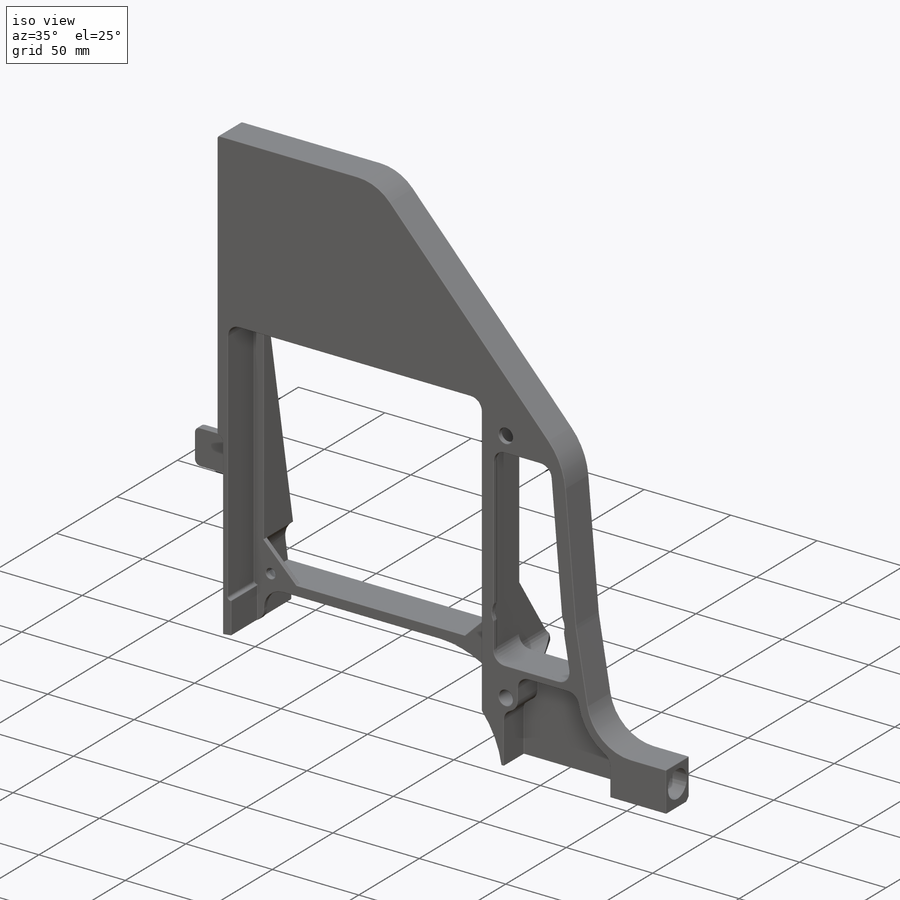
[diagram: iso view]
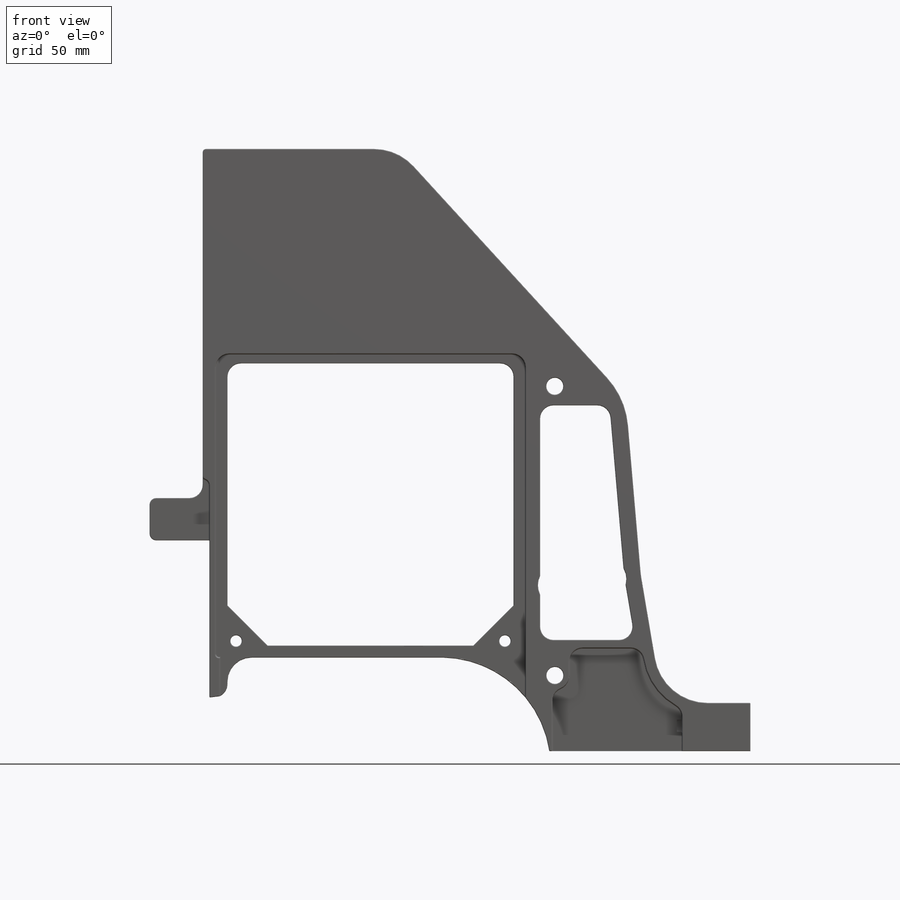
[diagram: front view]
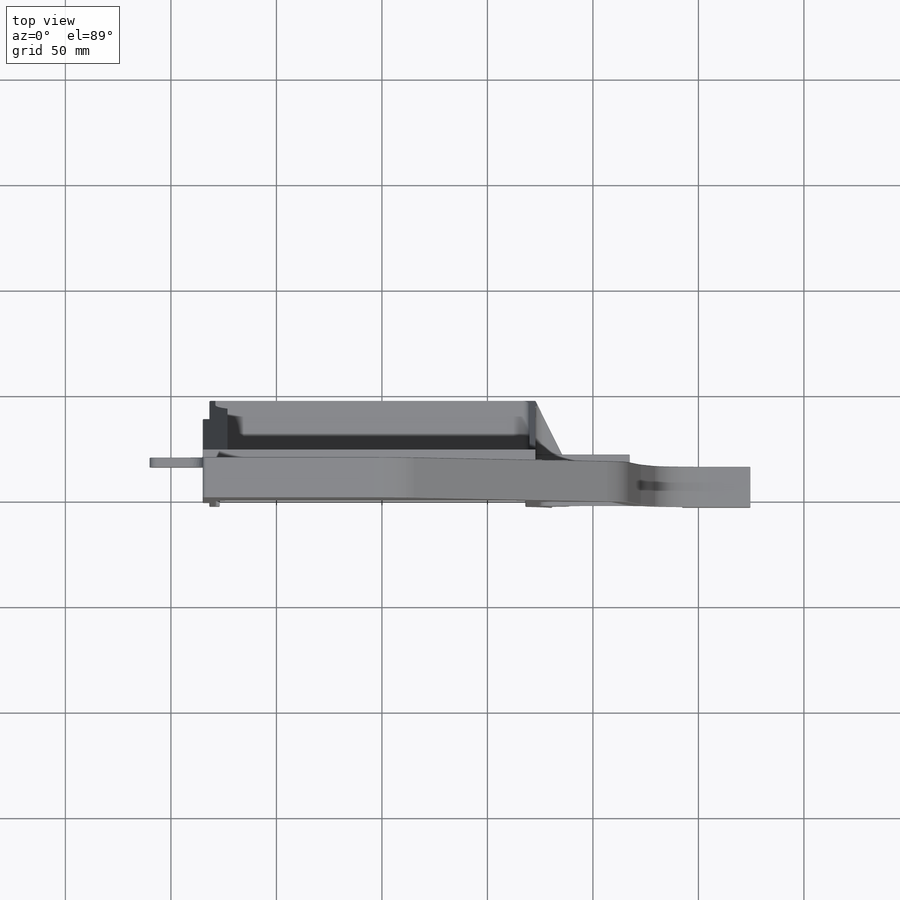
[diagram: top view]
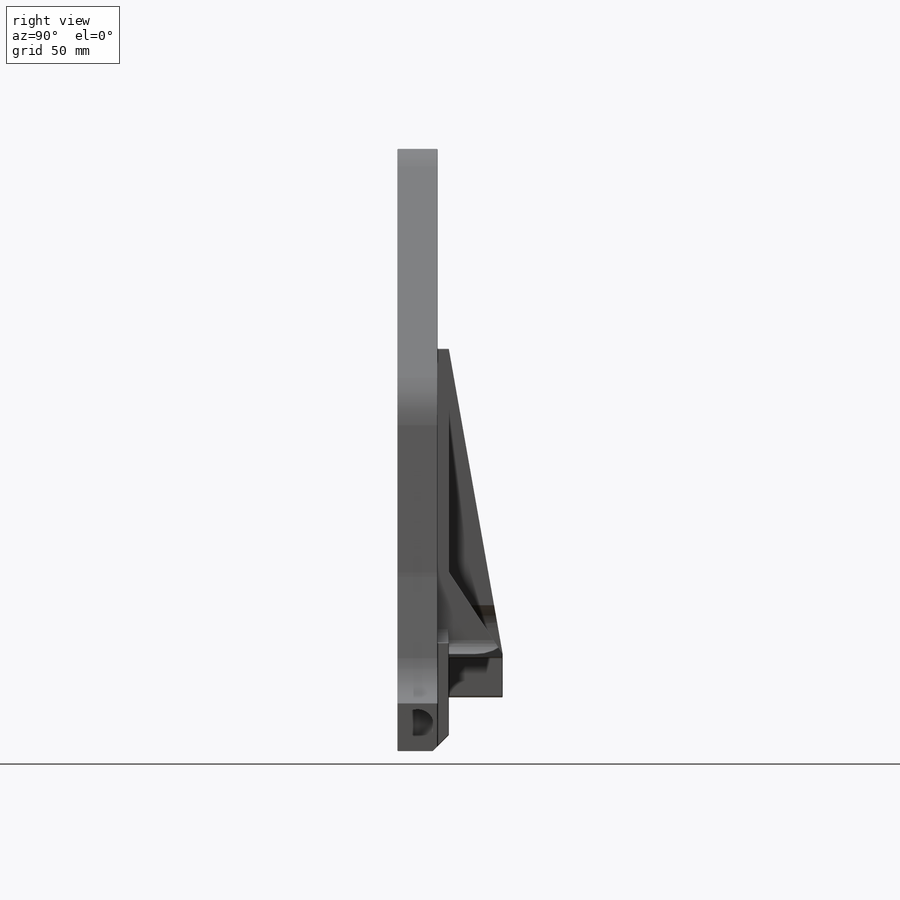
[diagram: right view]
SOLIDWORKS PART (.sldprt)
format: sldprt  version: not decoded by parser v0  size: 1,944,064 bytes
history: native  units: mm
features: fillet x23, sketch x22, extrude x16, cut_extrude x5, material x1, chamfer x1, plane x1 (+15 scaffold rows collapsed)
feature tree (84):
  scaffold x15  (default folders/planes/origin — collapsed)
  material  "6061-T6 (SS)"
  sketch  "Sketch32"  dims[c1.D17=335.915mm c1.D18=319.9638mm c1.D23=165.8874mm c1.D24=165.8874mm c2.D23=25.4mm c2.D24=38.1mm c2.D30=6.35mm c2.D31=6.35mm c2.D33=6.35mm c2.D35=76.2mm c2.D37=8.001mm c2.D36=6.35mm c3.D31=38.1mm c3.D28=6.35mm c3.D47=25.4mm c3.D50=6.35mm c3.D49=3.175mm c3.D52=19.05mm c3.D53=19.05mm c3.D54=19.05mm c3.D1=259.5118mm c3.D2=285.369mm c3.D5=~74.076137mm c4.D5=8.5deg c5.D5=~117.377746mm c6.D5=8.5deg c6.D1=3.175mm c6.D4=~92.444024mm c7.D4=8.5deg c7.D5=259.5118mm c7.D11=143.9164mm c7.D15=81.9404mm c7.D17=~143.81675mm c8.D17=~146.555915deg c9.D17=259.5118mm c10.D17=222.05deg c10.D18=285.369mm c10.D19=285.369mm c11.D19=5.05deg c11.D20=92.3798mm c11.D18=159.9819mm c12.D19=159.9819mm c13.D19=52.5deg c13.D20=~232.734196mm c14.D19=44.7548mm c14.D20=167.9575mm c14.D21=~40.056413mm c15.D20=256.3368mm c15.D32=111.125mm c15.D34=1.3716mm c15.D36=38.1mm c15.D37=~5.009499mm c16.D36=6.9723mm c16.D34=12.7mm c16.D38=35.8775mm c16.D39=~36.352434mm c17.D39=90.0deg c18.D39=13.97mm c18.D34=12.7mm c18.D36=~6.008644mm c18.D41=11.3284mm c18.D43=1.3716mm c18.D44=1.3716mm c18.D31=~27.530257mm c18.D35=~26.769295mm c18.D45=4.699mm c18.D47=~22.627975mm c18.D53=~11.018948mm c18.D55=25.4mm c19.D31=143.9164mm c19.D6=103.3272mm c20.D31=~9.542726mm c20.D3=25.4mm c20.D4=4.8768mm c20.D6=2.921mm c21.D4=3.175mm c21.D6=103.3145mm c22.D4=6.096mm c22.D7=4.8768mm c22.D8=18.9103mm c22.D9=162.8267mm c22.D10=146.812mm c22.D11=4.2545mm c22.D12=5.0292mm c22.D13=10.9474mm c22.D14=81.9404mm c22.D16=92.3798mm c22.D18=44.831mm c22.D20=22.86mm c22.D21=32.3215mm c22.D22=37.7698mm c22.D25=5.3086mm c22.D26=7.9121mm c22.D27=6.9723mm c22.D28=27.305mm c22.D29=3.8354mm c22.D32=111.125mm c22.D36=1.3716mm c22.D40=2.794mm c22.D41=26.67mm c22.D42=149.7076mm c22.D35=3.4544mm c23.D41=3.175mm c23.D44=58.0517mm c23.D45=4.699mm c23.D46=64.4144mm c23.D48=8.8138mm c23.D49=9.525mm c23.D51=0.9652mm c23.D53=0.9652mm c23.D31=143.9164mm]
  extrude  "Extrude25"  Depth=2.794mm
  fillet  "Fillet48"  Radius=6.35mm
  fillet  "Fillet49"  Radius=1.5875mm
  fillet  "Fillet50"  Radius=3.175mm
  fillet  "Fillet51"  Radius=25.4mm
  sketch  "Sketch34"  dims[D1=2.54mm]
  extrude  "Extrude26"  Depth=19.05mm
  sketch  "Sketch36"  dims[D1=1.27mm]
  extrude  "Extrude28"  [1 undecoded]
  sketch  "Sketch37"
  extrude  "Extrude29"  Depth=2.286mm
  sketch  "Sketch38"  dims[D1=57.15mm]
  extrude  "Extrude30"  Depth=24.3586mm
  sketch  "Sketch40"  dims[D8=22.86mm D9=6.35mm D1=2.4638mm D2=138.176mm D3=157.6578mm D4=5.7531mm D5=5.6388mm D6=5.6388mm D7=4.5212mm]
  extrude  "Extrude31"  Depth=2.794mm
  sketch  "Sketch41"  dims[D1=10.541mm]
  extrude  "Extrude32"  [1 undecoded]
  sketch  "Sketch42"
  extrude  "Extrude33"  [1 undecoded]
  fillet  "Fillet52"  Radius=6.35mm
  fillet  "Fillet53"  Radius=6.35mm
  chamfer  "Chamfer4"  Distance=19.05mm Angle=45deg
  sketch  "Sketch44"  dims[D1=1.9304mm]
  extrude  "Extrude34"  Depth=49.8729mm
  sketch  "Sketch45"
  extrude  "Extrude35"  Depth=2.794mm
  sketch  "Sketch47"  dims[D1=0.0mm]
  extrude  "Extrude37"  [1 undecoded]
  plane  "Plane4"  Offset=21.7551mm
  sketch  "Sketch48"  dims[c1.D1=6.35mm c1.D2=20.0914mm c2.D1=74.4474mm]
  extrude  "Tab2"  Depth=4.4831mm
  fillet  "Fillet54"  Radius=3.175mm
  sketch  "Sketch49"
  extrude  "Extrude39"  [1 undecoded]
  sketch  "Sketch50"
  extrude  "Extrude40"  [1 undecoded]
  fillet  "Fillet55"  Radius=12.7mm
  sketch  "Sketch52"  dims[D1=38.735mm]
  extrude  "Extrude41"  Depth=2.79908mm
  sketch  "Sketch53"  dims[D1=12.7mm]
  extrude  "Extrude42"  [1 undecoded]
  fillet  "Fillet56"  Radius=6.35mm
  fillet  "Fillet57"  Radius=3.175mm
  sketch  "Sketch54"  dims[c1.D1=7.5946mm c2.D1=45.0deg]
  cut_extrude  "Extrude43"  [1 undecoded]
  sketch  "Sketch55"  dims[D1=8.001mm D2=13.9192mm D3=9.0678mm]
  cut_extrude  "Extrude44"  [1 undecoded]
  sketch  "Sketch56"  dims[D4=5.334mm D1=9.7028mm D2=9.7028mm D3=26.797mm]
  cut_extrude  "Extrude45"  [1 undecoded]
  sketch  "Sketch57"
  cut_extrude  "Extrude46"  [1 undecoded]
  sketch  "Sketch59"  dims[D2=15.5956mm D1=12.065mm]
  cut_extrude  "Axel Cut 2"  Depth=34.8488mm
  fillet  "Fillet58"  Radius=0.396875mm
  fillet  "Fillet65"  Radius=0.396875mm
  fillet  "Fillet66"  Radius=0.396875mm
  fillet  "Fillet67"  Radius=0.396875mm
  fillet  "Fillet69"  Radius=0.396875mm
  fillet  "Fillet70"  Radius=0.396875mm
  fillet  "Fillet71"  Radius=0.396875mm
  fillet  "Fillet72"  Radius=0.396875mm
  fillet  "Fillet73"  Radius=0.396875mm
  fillet  "Fillet74"  Radius=0.396875mm
  fillet  "Fillet75"  Radius=0.396875mm
  fillet  "Fillet77"  Radius=0.396875mm
  fillet  "Fillet78"  Radius=0.396875mm
  sketch  "Sketch1"  dims[c1.D17=335.915mm c1.D18=319.9638mm c1.D23=165.8874mm c1.D24=165.8874mm c2.D23=25.4mm c2.D24=38.1mm c2.D30=6.35mm c2.D31=6.35mm c2.D33=6.35mm c2.D35=76.2mm c2.D37=8.001mm c2.D36=6.35mm c3.D31=38.1mm c3.D28=6.35mm c3.D47=25.4mm c3.D50=6.35mm c3.D49=3.175mm c3.D52=19.05mm c3.D53=19.05mm c3.D54=19.05mm c3.D1=259.5118mm c3.D2=285.369mm c3.D5=~74.076137mm c4.D5=8.5deg c5.D5=~117.377746mm c6.D5=8.5deg c6.D1=3.175mm c6.D4=~92.444024mm c7.D4=8.5deg c7.D5=259.5118mm c7.D11=143.9164mm c7.D15=81.9404mm c7.D17=~143.81675mm c8.D17=~146.555915deg c9.D17=259.5118mm c10.D17=222.05deg c10.D18=285.369mm c10.D19=285.369mm c11.D19=5.05deg c11.D20=92.3798mm c11.D18=159.9819mm c12.D19=159.9819mm c13.D19=52.5deg c13.D20=~232.734196mm c14.D19=44.7548mm c14.D20=167.9575mm c14.D21=~40.056413mm c15.D20=256.3368mm c15.D32=111.125mm c15.D34=1.3716mm c15.D36=38.1mm c15.D37=~5.009499mm c16.D36=6.9723mm c16.D34=12.7mm c16.D38=35.8775mm c16.D39=~36.352434mm c17.D39=90.0deg c18.D39=13.97mm c18.D34=12.7mm c18.D36=~6.008644mm c18.D41=11.3284mm c18.D43=1.3716mm c18.D44=1.3716mm c18.D31=~27.530257mm c18.D35=~26.769295mm c18.D45=4.699mm c18.D47=~22.627975mm c18.D53=~11.018948mm c18.D55=25.4mm c19.D31=143.9164mm c19.D6=103.3272mm c20.D31=~9.542726mm c20.D3=25.4mm c20.D4=4.8768mm c20.D6=2.921mm c21.D4=3.175mm c21.D6=103.3145mm c22.D4=6.096mm c22.D7=4.8768mm c22.D8=18.9103mm c22.D9=162.8267mm c22.D10=146.812mm c22.D11=4.2545mm c22.D12=5.0292mm c22.D13=10.9474mm c22.D14=81.9404mm c22.D16=92.3798mm c22.D18=44.831mm c22.D20=22.86mm c22.D21=32.3215mm c22.D22=37.7698mm c22.D25=5.3086mm c22.D26=7.9121mm c22.D27=6.9723mm c22.D28=27.305mm c22.D29=3.8354mm c22.D32=111.125mm c22.D36=1.3716mm c22.D40=2.794mm c22.D41=26.67mm c22.D42=149.7076mm c22.D35=3.4544mm c23.D41=3.175mm c23.D44=58.0517mm c23.D45=4.699mm c23.D46=64.4144mm c23.D48=8.8138mm c23.D49=9.525mm c23.D51=0.9652mm c23.D53=0.9652mm c23.D31=143.9164mm]
decode coverage: 50 of 67 modeling features carry decoded parameters
note: ~ marks probable driven/reference dimensions
note: 11 parameter values undecoded
summary: no parameter record found for 11 features
note: suppression state not decoded; provenance and decode notes live in map.json
